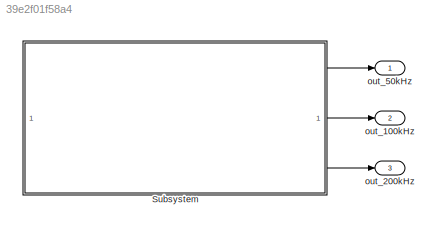
MODEL slx_39e2f01f58a4
KIND model
CONFIG AbsTol = auto
CONFIG EnableMultiTasking = off
CONFIG FixedStep = auto
CONFIG InitFcn = f_sim=1/5e6;\n
CONFIG MaxStep = auto
CONFIG MinStep = auto
CONFIG RelTol = 1e-3
CONFIG SampleTimeConstraint = Unconstrained
CONFIG SolverName = VariableStepAuto
CONFIG StartTime = 0.0
CONFIG StopTime = 10.0
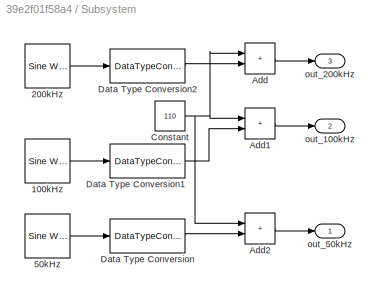
BLOCK [SubSystem] Subsystem
  SystemSampleTime = f_sim
  TreatAsAtomicUnit = on
BLOCK [Reference] Subsystem/100kHz  REF=dspsrcs4/Sine Wave
  SourceBlock = dspsrcs4/Sine Wave
  SourceType = Sine Wave
BLOCK [Reference] Subsystem/200kHz  REF=dspsrcs4/Sine Wave
  SourceBlock = dspsrcs4/Sine Wave
  SourceType = Sine Wave
BLOCK [Reference] Subsystem/50kHz  REF=dspsrcs4/Sine Wave
  SourceBlock = dspsrcs4/Sine Wave
  SourceType = Sine Wave
BLOCK [Sum] Subsystem/Add
  IconShape = rectangular
BLOCK [Sum] Subsystem/Add1
  IconShape = rectangular
BLOCK [Sum] Subsystem/Add2
  IconShape = rectangular
BLOCK [Constant] Subsystem/Constant
  OutDataTypeStr = fixdt(0,8,0)
  Value = 110
BLOCK [DataTypeConversion] Subsystem/Data Type Conversion
  OutDataTypeStr = fixdt(0,8,0)
  RndMeth = Floor
  SaturateOnIntegerOverflow = off
BLOCK [DataTypeConversion] Subsystem/Data Type Conversion1
  OutDataTypeStr = fixdt(0,8,0)
  RndMeth = Floor
  SaturateOnIntegerOverflow = off
BLOCK [DataTypeConversion] Subsystem/Data Type Conversion2
  OutDataTypeStr = fixdt(0,8,0)
  RndMeth = Floor
  SaturateOnIntegerOverflow = off
BLOCK [Outport] Subsystem/out_100kHz
  Port = 2
BLOCK [Outport] Subsystem/out_200kHz
  Port = 3
BLOCK [Outport] Subsystem/out_50kHz
BLOCK [Outport] out_100kHz
  Port = 2
BLOCK [Outport] out_200kHz
  Port = 3
BLOCK [Outport] out_50kHz
LINE Subsystem/100kHz:1 -> Subsystem/Data Type Conversion1:1
LINE Subsystem/200kHz:1 -> Subsystem/Data Type Conversion2:1
LINE Subsystem/50kHz:1 -> Subsystem/Data Type Conversion:1
LINE Subsystem/Add1:1 -> Subsystem/out_100kHz:1
LINE Subsystem/Add2:1 -> Subsystem/out_50kHz:1
LINE Subsystem/Add:1 -> Subsystem/out_200kHz:1
NET Subsystem/Constant:1 -> Subsystem/Add1:1, Subsystem/Add2:1, Subsystem/Add:1
LINE Subsystem/Data Type Conversion1:1 -> Subsystem/Add1:2
LINE Subsystem/Data Type Conversion2:1 -> Subsystem/Add:2
LINE Subsystem/Data Type Conversion:1 -> Subsystem/Add2:2
LINE Subsystem:1 -> out_50kHz:1
LINE Subsystem:2 -> out_100kHz:1
LINE Subsystem:3 -> out_200kHz:1
note: NET lines group one-source signal fan-out (src -> all destinations, sorted); 1:1 wires keep LINE
